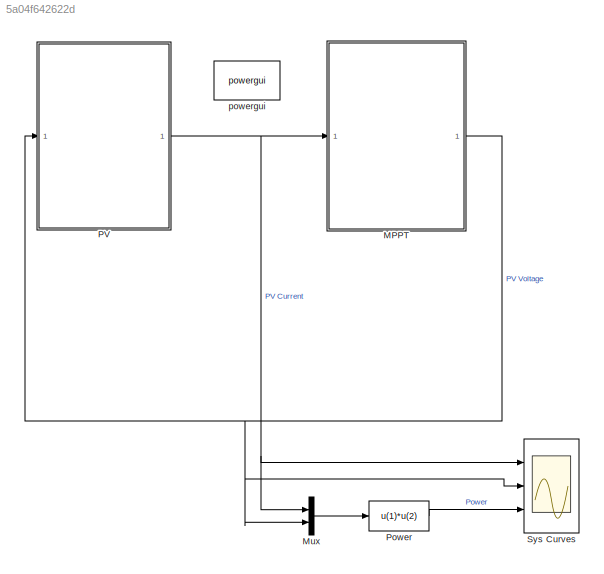
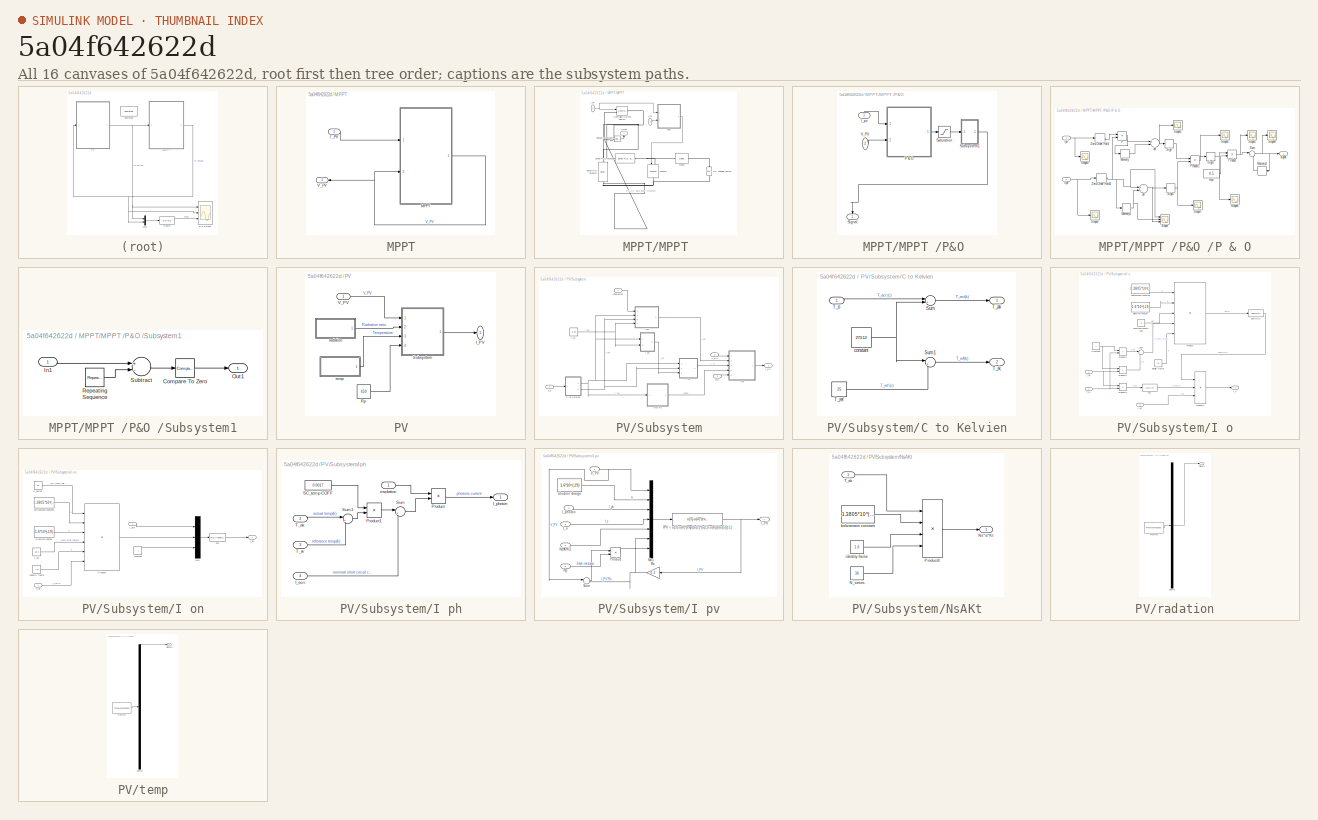
[diagram: thumbnail index - all 16 canvases of the model, root first then tree order]
MODEL slx_5a04f642622d
KIND model
CONFIG AbsTol = auto
CONFIG FixedStep = auto
CONFIG MaxStep = auto
CONFIG MinStep = .00001
CONFIG RelTol = 1e-6
CONFIG SampleTimeConstraint = Unconstrained
CONFIG Solver = ode45
CONFIG SolverMode = Auto
CONFIG SolverName = ode45
CONFIG StartTime = 0.0
CONFIG StopTime = .08
BLOCK [SubSystem] MPPT
  Ports = [1, 1]
  RequestExecContextInheritance = off
BLOCK [Inport] MPPT/I'_PV
  IconDisplay = Port number
BLOCK [SubSystem] MPPT/MPPT 
  Ports = [2, 1]
  RequestExecContextInheritance = off
BLOCK [Reference] MPPT/MPPT /Controlled Current Source  REF=powerlib/Electrical
Sources/Controlled Current Source
  Amplitude = 0
  Frequency = 0
  Initialize = on
  Measurements = None
  Phase = 0
  Ports = [1, 0, 0, 0, 0, 1, 1]
  SourceBlock = powerlib/Electrical\nSources/Controlled Current Source
  SourceType = Controlled Current Source
  Source_Type = AC
BLOCK [Reference] MPPT/MPPT /DC Voltage Source  REF=powerlib/Electrical
Sources/DC Voltage Source
  Amplitude = 55
  Measurements = None
  Ports = [0, 0, 0, 0, 0, 1, 1]
  SourceBlock = powerlib/Electrical\nSources/DC Voltage Source
  SourceType = DC Voltage Source
BLOCK [Reference] MPPT/MPPT /Diode  REF=powerlib/Power
Electronics/Diode
  Cs = 250e-9
  IC = 0
  Lon = 0
  Measurements = off
  Ports = [0, 0, 0, 0, 0, 1, 1]
  Ron = 0.001
  Rs = 500
  SourceBlock = powerlib/Power\nElectronics/Diode
  SourceType = Diode
  UseSnubber = off
  Vf = 0.8
BLOCK [Inport] MPPT/MPPT /I_PV
  IconDisplay = Port number
BLOCK [Reference] MPPT/MPPT /Mosfet  REF=powerlib/Power
Electronics/Mosfet
  Cs = inf
  IC = 0
  Lon = 0
  Measurements = off
  Ports = [1, 0, 0, 0, 0, 1, 1]
  Rd = 0.01
  Ron = 0.1
  Rs = 1e5
  SourceBlock = powerlib/Power\nElectronics/Mosfet
  SourceType = Mosfet
  Vfd = 0
BLOCK [SubSystem] MPPT/MPPT /P&O 
  Ports = [2, 1]
  RequestExecContextInheritance = off
BLOCK [Inport] MPPT/MPPT /P&O /I_pv
  IconDisplay = Port number
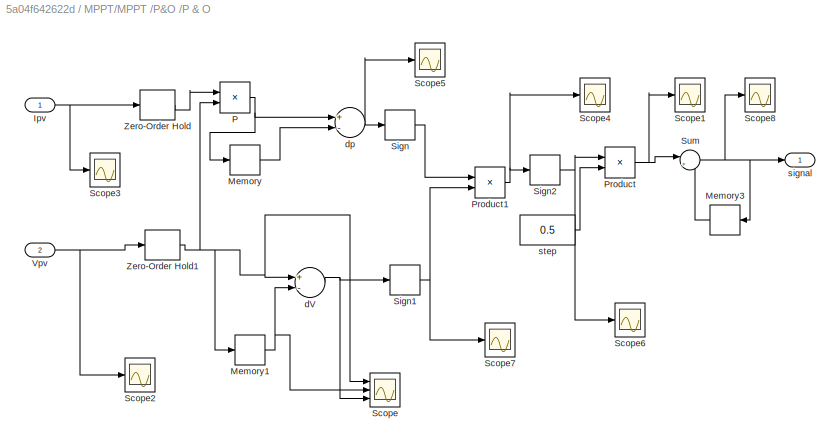
BLOCK [SubSystem] MPPT/MPPT /P&O /P & O
  Ports = [2, 1]
  RequestExecContextInheritance = off
BLOCK [Inport] MPPT/MPPT /P&O /P & O/Ipv
  IconDisplay = Port number
BLOCK [Memory] MPPT/MPPT /P&O /P & O/Memory
  InheritSampleTime = on
BLOCK [Memory] MPPT/MPPT /P&O /P & O/Memory1
  InheritSampleTime = on
BLOCK [Memory] MPPT/MPPT /P&O /P & O/Memory3
  InheritSampleTime = on
BLOCK [Product] MPPT/MPPT /P&O /P & O/P
  InputSameDT = off
  OutDataTypeStr = Inherit: Inherit via internal rule
  Ports = [2, 1]
  SaturateOnIntegerOverflow = off
BLOCK [Product] MPPT/MPPT /P&O /P & O/Product
  InputSameDT = off
  OutDataTypeStr = Inherit: Inherit via internal rule
  Ports = [2, 1]
  SaturateOnIntegerOverflow = off
BLOCK [Product] MPPT/MPPT /P&O /P & O/Product1
  InputSameDT = off
  OutDataTypeStr = Inherit: Inherit via internal rule
  Ports = [2, 1]
  SaturateOnIntegerOverflow = off
BLOCK [Scope] MPPT/MPPT /P&O /P & O/Scope
  DataFormat = StructureWithTime
  Floating = off
  LimitDataPoints = off
  NumInputPorts = 3
  Ports = [3]
  SampleTime = 0
  YMax = 32.2424~32.2424~1.7e-005
  YMin = 29.1717~29.1717~1e-006
  ZoomMode = yonly
BLOCK [Scope] MPPT/MPPT /P&O /P & O/Scope1
  DataFormat = StructureWithTime
  Floating = off
  LimitDataPoints = off
  NumInputPorts = 1
  Ports = [1]
  SampleTime = 0
  SaveName = ScopeData34
  YMax = 0.0005
  YMin = -0.0005
  ZoomMode = yonly
BLOCK [Scope] MPPT/MPPT /P&O /P & O/Scope2
  DataFormat = StructureWithTime
  Floating = off
  LimitDataPoints = off
  NumInputPorts = 1
  Ports = [1]
  SampleTime = 0
  SaveName = ScopeData35
  YMax = 10
  YMin = -11
  ZoomMode = yonly
BLOCK [Scope] MPPT/MPPT /P&O /P & O/Scope3
  DataFormat = StructureWithTime
  Floating = off
  LimitDataPoints = off
  NumInputPorts = 1
  Ports = [1]
  SampleTime = 0
  SaveName = ScopeData36
  YMax = 10
  YMin = -11
  ZoomMode = yonly
BLOCK [Scope] MPPT/MPPT /P&O /P & O/Scope4
  DataFormat = StructureWithTime
  Floating = off
  LimitDataPoints = off
  NumInputPorts = 1
  Ports = [1]
  SampleTime = 0
  SaveName = ScopeData37
  YMax = 10
  YMin = -11
  ZoomMode = yonly
BLOCK [Scope] MPPT/MPPT /P&O /P & O/Scope5
  DataFormat = StructureWithTime
  Floating = off
  LimitDataPoints = off
  NumInputPorts = 1
  Ports = [1]
  SampleTime = 0
  SaveName = ScopeData1
  YMax = 10
  YMin = -11
  ZoomMode = yonly
BLOCK [Scope] MPPT/MPPT /P&O /P & O/Scope6
  DataFormat = StructureWithTime
  Floating = off
  LimitDataPoints = off
  NumInputPorts = 1
  Ports = [1]
  SampleTime = 0
  SaveName = ScopeData38
  YMax = 10
  YMin = -11
  ZoomMode = yonly
BLOCK [Scope] MPPT/MPPT /P&O /P & O/Scope7
  DataFormat = StructureWithTime
  Floating = off
  LimitDataPoints = off
  NumInputPorts = 1
  Ports = [1]
  SampleTime = 0
  SaveName = ScopeData39
  YMax = 10
  YMin = -11
  ZoomMode = xonly
BLOCK [Scope] MPPT/MPPT /P&O /P & O/Scope8
  DataFormat = StructureWithTime
  Floating = off
  LimitDataPoints = off
  NumInputPorts = 1
  Ports = [1]
  SampleTime = 0
  SaveName = ScopeData3
  YMax = 0.0005
  YMin = -0.0005
  ZoomMode = yonly
BLOCK [Signum] MPPT/MPPT /P&O /P & O/Sign
BLOCK [Signum] MPPT/MPPT /P&O /P & O/Sign1
BLOCK [Signum] MPPT/MPPT /P&O /P & O/Sign2
BLOCK [Sum] MPPT/MPPT /P&O /P & O/Sum
  IconShape = round
  InputSameDT = off
  Inputs = |++
  OutDataTypeStr = Inherit: Inherit via internal rule
  Ports = [2, 1]
  SaturateOnIntegerOverflow = off
BLOCK [Inport] MPPT/MPPT /P&O /P & O/Vpv
  IconDisplay = Port number
  Port = 2
BLOCK [ZeroOrderHold] MPPT/MPPT /P&O /P & O/Zero-Order Hold
  SampleTime = 0.002
BLOCK [ZeroOrderHold] MPPT/MPPT /P&O /P & O/Zero-Order Hold1
  SampleTime = 0.002
BLOCK [Sum] MPPT/MPPT /P&O /P & O/dV
  InputSameDT = off
  Inputs = +-
  OutDataTypeStr = Inherit: Inherit via internal rule
  Ports = [2, 1]
  SaturateOnIntegerOverflow = off
BLOCK [Sum] MPPT/MPPT /P&O /P & O/dp
  InputSameDT = off
  Inputs = +-
  OutDataTypeStr = Inherit: Inherit via internal rule
  Ports = [2, 1]
  SaturateOnIntegerOverflow = off
BLOCK [Outport] MPPT/MPPT /P&O /P & O/signal
  IconDisplay = Port number
BLOCK [Constant] MPPT/MPPT /P&O /P & O/step
  Value = 0.5
BLOCK [Saturate] MPPT/MPPT /P&O /Saturation
  InputPortMap = u0
  Ports = [1, 1]
  UpperLimit = 1
BLOCK [Outport] MPPT/MPPT /P&O /Signal
  IconDisplay = Port number
BLOCK [SubSystem] MPPT/MPPT /P&O /Subsystem1
  Ports = [1, 1]
  RequestExecContextInheritance = off
BLOCK [Reference] MPPT/MPPT /P&O /Subsystem1/Compare To Zero  REF=simulink/Logic and Bit
Operations/Compare
To Zero
  OutDataTypeStr = boolean
  Ports = [1, 1]
  SourceBlock = simulink/Logic and Bit\nOperations/Compare\nTo Zero
  SourceType = Compare To Zero
  ZeroCross = on
  relop = <=
BLOCK [Inport] MPPT/MPPT /P&O /Subsystem1/In1
  IconDisplay = Port number
BLOCK [Outport] MPPT/MPPT /P&O /Subsystem1/Out1
  IconDisplay = Port number
BLOCK [Reference] MPPT/MPPT /P&O /Subsystem1/Repeating Sequence  REF=simulink/Sources/Repeating
Sequence
  Ports = [0, 1]
  SourceBlock = simulink/Sources/Repeating\nSequence
  SourceType = Repeating table
  rep_seq_t = [0 0.1e-3]
  rep_seq_y = [0 1]
BLOCK [Sum] MPPT/MPPT /P&O /Subsystem1/Subtract
  InputSameDT = off
  Inputs = +-
  OutDataTypeStr = Inherit: Inherit via internal rule
  Ports = [2, 1]
  SaturateOnIntegerOverflow = off
BLOCK [Inport] MPPT/MPPT /P&O /V_PV
  IconDisplay = Port number
  Port = 2
BLOCK [Reference] MPPT/MPPT /Series RLC Branch  REF=powerlib/Elements/Series RLC Branch
  BranchType = RL
  Capacitance = 1e-6
  Inductance = 1e-3
  InitialCurrent = 0
  InitialVoltage = 0
  LConnTagsString = __new0
  Measurements = None
  Ports = [0, 0, 0, 0, 0, 1, 1]
  RConnTagsString = __new0
  Resistance = .45
  SetiL0 = off
  Setx0 = off
  SourceBlock = powerlib/Elements/Series RLC Branch
  SourceType = Series RLC Branch
BLOCK [Reference] MPPT/MPPT /Series RLC Branch1  REF=powerlib/Elements/Series RLC Branch
  BranchType = C
  Capacitance = 2e-3
  Inductance = 1e-3
  InitialCurrent = 0
  InitialVoltage = 0
  LConnTagsString = __new0
  Measurements = None
  Ports = [0, 0, 0, 0, 0, 1, 1]
  RConnTagsString = __new0
  Resistance = 1
  SetiL0 = off
  Setx0 = off
  SourceBlock = powerlib/Elements/Series RLC Branch
  SourceType = Series RLC Branch
BLOCK [Inport] MPPT/MPPT /V_PV
  IconDisplay = Port number
  Port = 2
BLOCK [Outport] MPPT/MPPT /V_mpp
  IconDisplay = Port number
BLOCK [Reference] MPPT/MPPT /Voltage Measurement  REF=powerlib/Measurements/Voltage Measurement
  OutputType = Complex
  PSBequivalent = 0
  PhasorSimulation = off
  Ports = [0, 1, 0, 0, 0, 2]
  SourceBlock = powerlib/Measurements/Voltage Measurement
  SourceType = Voltage Measurement
  UserDataPersistent = on
BLOCK [Outport] MPPT/V'_PV 
  IconDisplay = Port number
BLOCK [Mux] Mux
  DisplayOption = bar
  Inputs = 2
  Ports = [2, 1]
BLOCK [SubSystem] PV
  Ports = [1, 1]
  RequestExecContextInheritance = off
BLOCK [Outport] PV/I_PV
  IconDisplay = Port number
BLOCK [Constant] PV/Rp
  Value = 450
BLOCK [SubSystem] PV/Subsystem
  Ports = [4, 1]
  RequestExecContextInheritance = off
BLOCK [SubSystem] PV/Subsystem/C to Kelvien
  Ports = [1, 2]
  RequestExecContextInheritance = off
BLOCK [Sum] PV/Subsystem/C to Kelvien/Sum
  IconShape = round
  InputSameDT = off
  Inputs = |++
  OutDataTypeStr = Inherit: Inherit via internal rule
  Ports = [2, 1]
  SaturateOnIntegerOverflow = off
BLOCK [Sum] PV/Subsystem/C to Kelvien/Sum1
  IconShape = round
  InputSameDT = off
  Inputs = |++
  OutDataTypeStr = Inherit: Inherit via internal rule
  Ports = [2, 1]
  SaturateOnIntegerOverflow = off
BLOCK [Outport] PV/Subsystem/C to Kelvien/T_ak
  IconDisplay = Port number
BLOCK [Inport] PV/Subsystem/C to Kelvien/T_o
  IconDisplay = Port number
BLOCK [Constant] PV/Subsystem/C to Kelvien/T_ref
  Value = 25
BLOCK [Outport] PV/Subsystem/C to Kelvien/T_rk
  IconDisplay = Port number
  Port = 2
BLOCK [Constant] PV/Subsystem/C to Kelvien/constant
  Value = 273.12
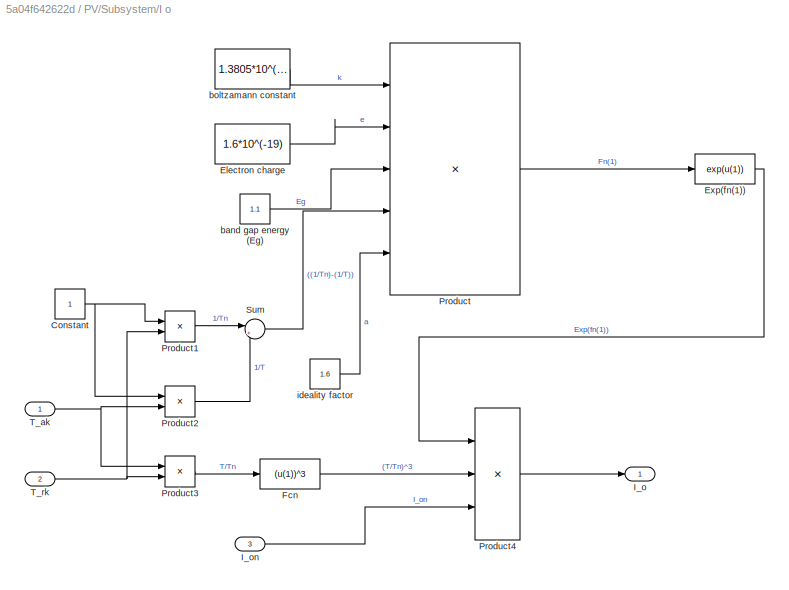
BLOCK [SubSystem] PV/Subsystem/I o
  Ports = [3, 1]
  RequestExecContextInheritance = off
BLOCK [Constant] PV/Subsystem/I o/Constant
BLOCK [Constant] PV/Subsystem/I o/Electron charge
  Value = 1.6*10^(-19)
BLOCK [Fcn] PV/Subsystem/I o/Exp(fn(1))
  Expr = exp(u(1))
BLOCK [Fcn] PV/Subsystem/I o/Fcn
  Expr = (u(1))^3
BLOCK [Outport] PV/Subsystem/I o/I_o
  IconDisplay = Port number
BLOCK [Inport] PV/Subsystem/I o/I_on
  IconDisplay = Port number
  Port = 3
BLOCK [Product] PV/Subsystem/I o/Product
  InputSameDT = off
  Inputs = /***/
  OutDataTypeStr = Inherit: Inherit via internal rule
  Ports = [5, 1]
  RndMeth = Floor
  SaturateOnIntegerOverflow = off
BLOCK [Product] PV/Subsystem/I o/Product1
  InputSameDT = off
  Inputs = */
  OutDataTypeStr = Inherit: Inherit via internal rule
  Ports = [2, 1]
  RndMeth = Floor
  SaturateOnIntegerOverflow = off
BLOCK [Product] PV/Subsystem/I o/Product2
  InputSameDT = off
  Inputs = */
  OutDataTypeStr = Inherit: Inherit via internal rule
  Ports = [2, 1]
  RndMeth = Floor
  SaturateOnIntegerOverflow = off
BLOCK [Product] PV/Subsystem/I o/Product3
  InputSameDT = off
  Inputs = */
  OutDataTypeStr = Inherit: Inherit via internal rule
  Ports = [2, 1]
  RndMeth = Floor
  SaturateOnIntegerOverflow = off
BLOCK [Product] PV/Subsystem/I o/Product4
  InputSameDT = off
  Inputs = 3
  OutDataTypeStr = Inherit: Inherit via internal rule
  Ports = [3, 1]
  RndMeth = Floor
  SaturateOnIntegerOverflow = off
BLOCK [Sum] PV/Subsystem/I o/Sum
  IconShape = round
  InputSameDT = off
  Inputs = |+-
  OutDataTypeStr = Inherit: Inherit via internal rule
  Ports = [2, 1]
  SaturateOnIntegerOverflow = off
BLOCK [Inport] PV/Subsystem/I o/T_ak
  IconDisplay = Port number
BLOCK [Inport] PV/Subsystem/I o/T_rk
  IconDisplay = Port number
  Port = 2
BLOCK [Constant] PV/Subsystem/I o/band gap energy (Eg)
  Value = 1.1
BLOCK [Constant] PV/Subsystem/I o/boltzamann constant
  Value = 1.3805*10^(-23)
BLOCK [Constant] PV/Subsystem/I o/ideality factor
  Value = 1.6
BLOCK [SubSystem] PV/Subsystem/I on
  Ports = [2, 1]
  RequestExecContextInheritance = off
BLOCK [Constant] PV/Subsystem/I on/Electron charge
  Value = 1.6*10^(-19)
BLOCK [Fcn] PV/Subsystem/I on/Fcn
  Expr = (u(1))/(exp(u(2))-u(1))
BLOCK [Outport] PV/Subsystem/I on/I_on
  IconDisplay = Port number
BLOCK [Inport] PV/Subsystem/I on/I_scn
  IconDisplay = Port number
  Port = 2
BLOCK [Mux] PV/Subsystem/I on/Mux
  DisplayOption = bar
  Inputs = 3
  Ports = [3, 1]
BLOCK [Constant] PV/Subsystem/I on/N_series
  Value = 36
BLOCK [Product] PV/Subsystem/I on/Product
  InputSameDT = off
  Inputs = //**//
  OutDataTypeStr = Inherit: Inherit via internal rule
  Ports = [6, 1]
  RndMeth = Floor
  SaturateOnIntegerOverflow = off
BLOCK [Inport] PV/Subsystem/I on/T_ref
  IconDisplay = Port number
BLOCK [Constant] PV/Subsystem/I on/V_oc
  Value = 68.2
BLOCK [Constant] PV/Subsystem/I on/boltzamann constant
  Value = 1.3805*10^(-23)
BLOCK [Constant] PV/Subsystem/I on/constant
BLOCK [Constant] PV/Subsystem/I on/ideality factor
  Value = 1.6
BLOCK [SubSystem] PV/Subsystem/I ph
  Ports = [4, 1]
  RequestExecContextInheritance = off
BLOCK [Outport] PV/Subsystem/I ph/I_photon
  IconDisplay = Port number
BLOCK [Inport] PV/Subsystem/I ph/I_scn
  IconDisplay = Port number
  Port = 4
BLOCK [Product] PV/Subsystem/I ph/Product
  InputSameDT = off
  OutDataTypeStr = Inherit: Inherit via internal rule
  Ports = [2, 1]
  RndMeth = Floor
  SaturateOnIntegerOverflow = off
BLOCK [Product] PV/Subsystem/I ph/Product1
  InputSameDT = off
  OutDataTypeStr = Inherit: Inherit via internal rule
  Ports = [2, 1]
  RndMeth = Floor
  SaturateOnIntegerOverflow = off
BLOCK [Constant] PV/Subsystem/I ph/SC_temp COFF
  Value = 0.0017
BLOCK [Sum] PV/Subsystem/I ph/Sum
  IconShape = round
  InputSameDT = off
  Inputs = |++
  OutDataTypeStr = Inherit: Inherit via internal rule
  Ports = [2, 1]
  SaturateOnIntegerOverflow = off
BLOCK [Sum] PV/Subsystem/I ph/Sum1
  IconShape = round
  InputSameDT = off
  Inputs = |+-
  OutDataTypeStr = Inherit: Inherit via internal rule
  Ports = [2, 1]
  SaturateOnIntegerOverflow = off
BLOCK [Inport] PV/Subsystem/I ph/T_ak
  IconDisplay = Port number
  Port = 2
BLOCK [Inport] PV/Subsystem/I ph/T_rk
  IconDisplay = Port number
  Port = 3
BLOCK [Inport] PV/Subsystem/I ph/insolation
  IconDisplay = Port number
BLOCK [SubSystem] PV/Subsystem/I pv
  Ports = [5, 1]
  RequestExecContextInheritance = off
BLOCK [Constant] PV/Subsystem/I pv/Electron charge
  Value = 1.6*10^(-19)
BLOCK [Fcn] PV/Subsystem/I pv/IPV = u(3)-u(4)*(exp((u(2)*(u(1)+u(6)))//(u(5)))-1)
  Expr = u(3)-u(4)*(exp((u(2)*(u(1)+u(6)))/(u(5)))-1)-u(7)
BLOCK [Outport] PV/Subsystem/I pv/I_PV
  IconDisplay = Port number
BLOCK [Inport] PV/Subsystem/I pv/I_o
  IconDisplay = Port number
  Port = 3
BLOCK [Inport] PV/Subsystem/I pv/I_photon
  IconDisplay = Port number
  Port = 2
BLOCK [Mux] PV/Subsystem/I pv/Mux
  DisplayOption = bar
  Inputs = 7
  Ports = [7, 1]
BLOCK [Inport] PV/Subsystem/I pv/Ns*A*Kt1
  IconDisplay = Port number
  Port = 4
BLOCK [Product] PV/Subsystem/I pv/Product
  InputSameDT = off
  Inputs = */
  OutDataTypeStr = Inherit: Inherit via internal rule
  Ports = [2, 1]
  RndMeth = Floor
  SaturateOnIntegerOverflow = off
BLOCK [Inport] PV/Subsystem/I pv/Rp
  IconDisplay = Port number
  Port = 5
BLOCK [Gain] PV/Subsystem/I pv/Rs
  Gain = 0.1
  OutDataTypeStr = Inherit: Inherit via internal rule
  ParamDataTypeStr = Inherit: Inherit via internal rule
  SaturateOnIntegerOverflow = off
BLOCK [Sum] PV/Subsystem/I pv/Sum
  IconShape = round
  InputSameDT = off
  Inputs = |++
  OutDataTypeStr = Inherit: Inherit via internal rule
  Ports = [2, 1]
  SaturateOnIntegerOverflow = off
BLOCK [Inport] PV/Subsystem/I pv/V_PV
  IconDisplay = Port number
BLOCK [Outport] PV/Subsystem/I_PV
  IconDisplay = Port number
BLOCK [Constant] PV/Subsystem/I_sc
  Value = 6.39
BLOCK [SubSystem] PV/Subsystem/NsAKt
  Ports = [1, 1]
  RequestExecContextInheritance = off
BLOCK [Constant] PV/Subsystem/NsAKt/N_series
  Value = 36
BLOCK [Outport] PV/Subsystem/NsAKt/Ns*a*Kt
  IconDisplay = Port number
BLOCK [Product] PV/Subsystem/NsAKt/Product4
  InputSameDT = off
  Inputs = 4
  OutDataTypeStr = Inherit: Inherit via internal rule
  Ports = [4, 1]
  RndMeth = Floor
  SaturateOnIntegerOverflow = off
BLOCK [Inport] PV/Subsystem/NsAKt/T_ak
  IconDisplay = Port number
BLOCK [Constant] PV/Subsystem/NsAKt/boltzamann constant
  Value = 1.3805*10^(-23)
BLOCK [Constant] PV/Subsystem/NsAKt/ideality factor
  Value = 1.6
BLOCK [Inport] PV/Subsystem/Rp
  IconDisplay = Port number
  Port = 4
BLOCK [Inport] PV/Subsystem/T_o
  IconDisplay = Port number
  Port = 3
BLOCK [Inport] PV/Subsystem/V_PV
  IconDisplay = Port number
BLOCK [Inport] PV/Subsystem/insolation
  IconDisplay = Port number
  Port = 2
BLOCK [Inport] PV/V_PV
  IconDisplay = Port number
BLOCK [SubSystem] PV/radation
  ClipboardFcn = sigbuilder_block('clipboard');
  CloseFcn = sigbuilder_block('close');
  ContinueFcn = sigbuilder_block('continue');
  CopyFcn = sigbuilder_block('copy');
  DeleteFcn = sigbuilder_block('delete');
  LoadFcn = sigbuilder_block('load');
  MaskHideContents = on
  ModelCloseFcn = sigbuilder_block('modelClose');
  NameChangeFcn = sigbuilder_block('namechange');
  OpenFcn = sigbuilder_block('open',[267 58.5 550.5 394.5 ]);
  PauseFcn = sigbuilder_block('pause');
  Ports = [0, 1]
  PreSaveFcn = sigbuilder_block('preSave');
  RequestExecContextInheritance = off
  StartFcn = sigbuilder_block('start');
  StopFcn = sigbuilder_block('stop');
  Tag = STV Subsys
BLOCK [Demux] PV/radation/Demux
  Outputs = 1
  Ports = [1, 1]
  Tag = STV Demux
BLOCK [FromWorkspace] PV/radation/FromWs
  SampleTime = 0
  Tag = STV FromWs
  VariableName = tuvar
  ZeroCross = on
BLOCK [Outport] PV/radation/Signal 1
  IconDisplay = Port number
  Tag = STV Outport
BLOCK [SubSystem] PV/temp
  ClipboardFcn = sigbuilder_block('clipboard');
  CloseFcn = sigbuilder_block('close');
  ContinueFcn = sigbuilder_block('continue');
  CopyFcn = sigbuilder_block('copy');
  DeleteFcn = sigbuilder_block('delete');
  LoadFcn = sigbuilder_block('load');
  MaskHideContents = on
  ModelCloseFcn = sigbuilder_block('modelClose');
  NameChangeFcn = sigbuilder_block('namechange');
  OpenFcn = sigbuilder_block('open',[437.25 118.5 550.5 394.5 ]);
  PauseFcn = sigbuilder_block('pause');
  Ports = [0, 1]
  PreSaveFcn = sigbuilder_block('preSave');
  RequestExecContextInheritance = off
  StartFcn = sigbuilder_block('start');
  StopFcn = sigbuilder_block('stop');
  Tag = STV Subsys
BLOCK [Demux] PV/temp/Demux
  Outputs = 1
  Ports = [1, 1]
  Tag = STV Demux
BLOCK [FromWorkspace] PV/temp/FromWs
  SampleTime = 0
  Tag = STV FromWs
  VariableName = tuvar
  ZeroCross = on
BLOCK [Outport] PV/temp/Signal 2
  IconDisplay = Port number
  Tag = STV Outport
BLOCK [Fcn] Power 
  Expr = u(1)*u(2)
BLOCK [Scope] Sys Curves
  Floating = off
  LimitDataPoints = off
  NumInputPorts = 3
  Ports = [3]
  SaveName = ScopeData2
  YMax = 400~80~6.4
  YMin = 0~0~6.15
  ZoomMode = xonly
BLOCK [Reference] powergui  REF=powerlib/powergui
  DisableRonSwitches = off
  DisableSnubberDevices = off
  DisableVfSwitches = off
  DisplayEquations = off
  DisplayStyle = 1
  EnableUseOfTLC = off
  ErrMax = 1e-4
  Frange = [0:2:500]
  FreqAxis = off
  FunctionMessages = off
  HookPort = off
  Interpol = off
  Iterations = 50
  MaxFrequency = 1000
  Pbase = 100e6
  Ports = []
  Priority = 1
  ResistiveCurrentMeasurement = off
  RestoreLinks = warning
  RmsSteady = 1
  SPID = on
  SampleTime = 50e-6
  ShowGrid = off
  SolverType = Tustin
  SourceBlock = powerlib/powergui
  SourceType = PSB option menu block
  StartTime = 0.0
  SwTol = 0
  Ts = 100
  UnitsV = kV
  UnitsW = MW
  UserDataPersistent = on
  Xlog = on
  Ylog = off
  ZoomFFT = off
  buscounter = 0
  cycles = 1
  display = off
  echomessages = off
  frequency = 60
  frequencyindice = 0
  frequencyindicesteady = 1
  fundamental = 60
  methode = off
  save = off
  structure = 0
  variable = ZData
  x0status = blocks
ANNOTATION MPPT/MPPT : DC_DC Buck Boost Conveter
LINE MPPT/I'_PV:1 -> MPPT/MPPT :1
NET MPPT/MPPT /I_PV:1 -> MPPT/MPPT /Controlled Current Source:1, MPPT/MPPT /P&O :1
LINE MPPT/MPPT /P&O /I_pv:1 -> MPPT/MPPT /P&O /P & O:1
NET MPPT/MPPT /P&O /P & O/Ipv:1 -> MPPT/MPPT /P&O /P & O/Scope3:1, MPPT/MPPT /P&O /P & O/Zero-Order Hold:1
NET MPPT/MPPT /P&O /P & O/Memory1:1 -> MPPT/MPPT /P&O /P & O/Scope:2, MPPT/MPPT /P&O /P & O/dV:2
LINE MPPT/MPPT /P&O /P & O/Memory3:1 -> MPPT/MPPT /P&O /P & O/Sum:2
LINE MPPT/MPPT /P&O /P & O/Memory:1 -> MPPT/MPPT /P&O /P & O/dp:2
NET MPPT/MPPT /P&O /P & O/P:1 -> MPPT/MPPT /P&O /P & O/Memory:1, MPPT/MPPT /P&O /P & O/dp:1
NET MPPT/MPPT /P&O /P & O/Product1:1 -> MPPT/MPPT /P&O /P & O/Scope4:1, MPPT/MPPT /P&O /P & O/Sign2:1
NET MPPT/MPPT /P&O /P & O/Product:1 -> MPPT/MPPT /P&O /P & O/Scope1:1, MPPT/MPPT /P&O /P & O/Sum:1
NET MPPT/MPPT /P&O /P & O/Sign1:1 -> MPPT/MPPT /P&O /P & O/Product1:2, MPPT/MPPT /P&O /P & O/Scope7:1
NET MPPT/MPPT /P&O /P & O/Sign2:1 -> MPPT/MPPT /P&O /P & O/Product:1, MPPT/MPPT /P&O /P & O/Scope6:1
LINE MPPT/MPPT /P&O /P & O/Sign:1 -> MPPT/MPPT /P&O /P & O/Product1:1
NET MPPT/MPPT /P&O /P & O/Sum:1 -> MPPT/MPPT /P&O /P & O/Memory3:1, MPPT/MPPT /P&O /P & O/Scope8:1, MPPT/MPPT /P&O /P & O/signal:1
NET MPPT/MPPT /P&O /P & O/Vpv:1 -> MPPT/MPPT /P&O /P & O/Scope2:1, MPPT/MPPT /P&O /P & O/Zero-Order Hold1:1
NET MPPT/MPPT /P&O /P & O/Zero-Order Hold1:1 -> MPPT/MPPT /P&O /P & O/Memory1:1, MPPT/MPPT /P&O /P & O/P:2, MPPT/MPPT /P&O /P & O/Scope:1, MPPT/MPPT /P&O /P & O/dV:1
LINE MPPT/MPPT /P&O /P & O/Zero-Order Hold:1 -> MPPT/MPPT /P&O /P & O/P:1
NET MPPT/MPPT /P&O /P & O/dV:1 -> MPPT/MPPT /P&O /P & O/Scope:3, MPPT/MPPT /P&O /P & O/Sign1:1
NET MPPT/MPPT /P&O /P & O/dp:1 -> MPPT/MPPT /P&O /P & O/Scope5:1, MPPT/MPPT /P&O /P & O/Sign:1
LINE MPPT/MPPT /P&O /P & O/step:1 -> MPPT/MPPT /P&O /P & O/Product:2
LINE MPPT/MPPT /P&O /P & O:1 -> MPPT/MPPT /P&O /Saturation:1
LINE MPPT/MPPT /P&O /Saturation:1 -> MPPT/MPPT /P&O /Subsystem1:1
LINE MPPT/MPPT /P&O /Subsystem1/Compare To Zero:1 -> MPPT/MPPT /P&O /Subsystem1/Out1:1
LINE MPPT/MPPT /P&O /Subsystem1/In1:1 -> MPPT/MPPT /P&O /Subsystem1/Subtract:1
LINE MPPT/MPPT /P&O /Subsystem1/Repeating Sequence:1 -> MPPT/MPPT /P&O /Subsystem1/Subtract:2
LINE MPPT/MPPT /P&O /Subsystem1/Subtract:1 -> MPPT/MPPT /P&O /Subsystem1/Compare To Zero:1
LINE MPPT/MPPT /P&O /Subsystem1:1 -> MPPT/MPPT /P&O /Signal:1
LINE MPPT/MPPT /P&O /V_PV:1 -> MPPT/MPPT /P&O /P & O:2
LINE MPPT/MPPT /P&O :1 -> MPPT/MPPT /Mosfet:1
LINE MPPT/MPPT /V_PV:1 -> MPPT/MPPT /P&O :2
LINE MPPT/MPPT /Voltage Measurement:1 -> MPPT/MPPT /V_mpp:1
NET MPPT/MPPT :1 -> MPPT/MPPT :2, MPPT/V'_PV :1
NET MPPT:1 -> Mux:2, PV:1, Sys Curves:2
LINE Mux:1 -> Power :1
LINE PV/Rp:1 -> PV/Subsystem:4
LINE PV/Subsystem/C to Kelvien/Sum1:1 -> PV/Subsystem/C to Kelvien/T_rk:1
LINE PV/Subsystem/C to Kelvien/Sum:1 -> PV/Subsystem/C to Kelvien/T_ak:1
LINE PV/Subsystem/C to Kelvien/T_o:1 -> PV/Subsystem/C to Kelvien/Sum:1
LINE PV/Subsystem/C to Kelvien/T_ref:1 -> PV/Subsystem/C to Kelvien/Sum1:2
NET PV/Subsystem/C to Kelvien/constant:1 -> PV/Subsystem/C to Kelvien/Sum1:1, PV/Subsystem/C to Kelvien/Sum:2
NET PV/Subsystem/C to Kelvien:1 -> PV/Subsystem/I o:1, PV/Subsystem/I on:1, PV/Subsystem/I ph:2, PV/Subsystem/NsAKt:1
NET PV/Subsystem/C to Kelvien:2 -> PV/Subsystem/I o:2, PV/Subsystem/I ph:3
NET PV/Subsystem/I o/Constant:1 -> PV/Subsystem/I o/Product1:1, PV/Subsystem/I o/Product2:1
LINE PV/Subsystem/I o/Electron charge:1 -> PV/Subsystem/I o/Product:2
LINE PV/Subsystem/I o/Exp(fn(1)):1 -> PV/Subsystem/I o/Product4:1
LINE PV/Subsystem/I o/Fcn:1 -> PV/Subsystem/I o/Product4:2
LINE PV/Subsystem/I o/I_on:1 -> PV/Subsystem/I o/Product4:3
LINE PV/Subsystem/I o/Product1:1 -> PV/Subsystem/I o/Sum:1
LINE PV/Subsystem/I o/Product2:1 -> PV/Subsystem/I o/Sum:2
LINE PV/Subsystem/I o/Product3:1 -> PV/Subsystem/I o/Fcn:1
LINE PV/Subsystem/I o/Product4:1 -> PV/Subsystem/I o/I_o:1
LINE PV/Subsystem/I o/Product:1 -> PV/Subsystem/I o/Exp(fn(1)):1
LINE PV/Subsystem/I o/Sum:1 -> PV/Subsystem/I o/Product:4
NET PV/Subsystem/I o/T_ak:1 -> PV/Subsystem/I o/Product2:2, PV/Subsystem/I o/Product3:1
NET PV/Subsystem/I o/T_rk:1 -> PV/Subsystem/I o/Product1:2, PV/Subsystem/I o/Product3:2
LINE PV/Subsystem/I o/band gap energy (Eg):1 -> PV/Subsystem/I o/Product:3
LINE PV/Subsystem/I o/boltzamann constant:1 -> PV/Subsystem/I o/Product:1
LINE PV/Subsystem/I o/ideality factor:1 -> PV/Subsystem/I o/Product:5
LINE PV/Subsystem/I o:1 -> PV/Subsystem/I pv:3
LINE PV/Subsystem/I on/Electron charge:1 -> PV/Subsystem/I on/Product:3
LINE PV/Subsystem/I on/Fcn:1 -> PV/Subsystem/I on/I_on:1
LINE PV/Subsystem/I on/I_scn:1 -> PV/Subsystem/I on/Mux:1
LINE PV/Subsystem/I on/Mux:1 -> PV/Subsystem/I on/Fcn:1
LINE PV/Subsystem/I on/N_series:1 -> PV/Subsystem/I on/Product:1
LINE PV/Subsystem/I on/Product:1 -> PV/Subsystem/I on/Mux:2
LINE PV/Subsystem/I on/T_ref:1 -> PV/Subsystem/I on/Product:6
LINE PV/Subsystem/I on/V_oc:1 -> PV/Subsystem/I on/Product:4
LINE PV/Subsystem/I on/boltzamann constant:1 -> PV/Subsystem/I on/Product:2
LINE PV/Subsystem/I on/constant:1 -> PV/Subsystem/I on/Mux:3
LINE PV/Subsystem/I on/ideality factor:1 -> PV/Subsystem/I on/Product:5
LINE PV/Subsystem/I on:1 -> PV/Subsystem/I o:3
LINE PV/Subsystem/I ph/I_scn:1 -> PV/Subsystem/I ph/Sum:2
LINE PV/Subsystem/I ph/Product1:1 -> PV/Subsystem/I ph/Sum:1
LINE PV/Subsystem/I ph/Product:1 -> PV/Subsystem/I ph/I_photon:1
LINE PV/Subsystem/I ph/SC_temp COFF:1 -> PV/Subsystem/I ph/Product1:1
LINE PV/Subsystem/I ph/Sum1:1 -> PV/Subsystem/I ph/Product1:2
LINE PV/Subsystem/I ph/Sum:1 -> PV/Subsystem/I ph/Product:2
LINE PV/Subsystem/I ph/T_ak:1 -> PV/Subsystem/I ph/Sum1:1
LINE PV/Subsystem/I ph/T_rk:1 -> PV/Subsystem/I ph/Sum1:2
LINE PV/Subsystem/I ph/insolation:1 -> PV/Subsystem/I ph/Product:1
LINE PV/Subsystem/I ph:1 -> PV/Subsystem/I pv:2
LINE PV/Subsystem/I pv/Electron charge:1 -> PV/Subsystem/I pv/Mux:2
NET PV/Subsystem/I pv/IPV = u(3)-u(4)*(exp((u(2)*(u(1)+u(6)))//(u(5)))-1):1 -> PV/Subsystem/I pv/I_PV:1, PV/Subsystem/I pv/Rs:1
LINE PV/Subsystem/I pv/I_o:1 -> PV/Subsystem/I pv/Mux:4
LINE PV/Subsystem/I pv/I_photon:1 -> PV/Subsystem/I pv/Mux:3
LINE PV/Subsystem/I pv/Mux:1 -> PV/Subsystem/I pv/IPV = u(3)-u(4)*(exp((u(2)*(u(1)+u(6)))//(u(5)))-1):1
LINE PV/Subsystem/I pv/Ns*A*Kt1:1 -> PV/Subsystem/I pv/Mux:5
LINE PV/Subsystem/I pv/Product:1 -> PV/Subsystem/I pv/Mux:7
LINE PV/Subsystem/I pv/Rp:1 -> PV/Subsystem/I pv/Product:2
NET PV/Subsystem/I pv/Rs:1 -> PV/Subsystem/I pv/Mux:6, PV/Subsystem/I pv/Sum:2
LINE PV/Subsystem/I pv/Sum:1 -> PV/Subsystem/I pv/Product:1
NET PV/Subsystem/I pv/V_PV:1 -> PV/Subsystem/I pv/Mux:1, PV/Subsystem/I pv/Sum:1
LINE PV/Subsystem/I pv:1 -> PV/Subsystem/I_PV:1
NET PV/Subsystem/I_sc:1 -> PV/Subsystem/I on:2, PV/Subsystem/I ph:4
LINE PV/Subsystem/NsAKt/N_series:1 -> PV/Subsystem/NsAKt/Product4:4
LINE PV/Subsystem/NsAKt/Product4:1 -> PV/Subsystem/NsAKt/Ns*a*Kt:1
LINE PV/Subsystem/NsAKt/T_ak:1 -> PV/Subsystem/NsAKt/Product4:1
LINE PV/Subsystem/NsAKt/boltzamann constant:1 -> PV/Subsystem/NsAKt/Product4:2
LINE PV/Subsystem/NsAKt/ideality factor:1 -> PV/Subsystem/NsAKt/Product4:3
LINE PV/Subsystem/NsAKt:1 -> PV/Subsystem/I pv:4
LINE PV/Subsystem/Rp:1 -> PV/Subsystem/I pv:5
LINE PV/Subsystem/T_o:1 -> PV/Subsystem/C to Kelvien:1
LINE PV/Subsystem/V_PV:1 -> PV/Subsystem/I pv:1
LINE PV/Subsystem/insolation:1 -> PV/Subsystem/I ph:1
LINE PV/Subsystem:1 -> PV/I_PV:1
LINE PV/V_PV:1 -> PV/Subsystem:1
LINE PV/radation:1 -> PV/Subsystem:2
LINE PV/temp:1 -> PV/Subsystem:3
NET PV:1 -> MPPT:1, Mux:1, Sys Curves:1
LINE Power :1 -> Sys Curves:3
PNET net1: MPPT/MPPT /Controlled Current Source:LConn1 -- MPPT/MPPT /DC Voltage Source:LConn1 -- MPPT/MPPT /Mosfet:RConn1 -- MPPT/MPPT /Series RLC Branch1:RConn1 -- MPPT/MPPT /Voltage Measurement:LConn2
PNET net2: MPPT/MPPT /Controlled Current Source:RConn1 -- MPPT/MPPT /Series RLC Branch1:LConn1 -- MPPT/MPPT /Series RLC Branch:LConn1 -- MPPT/MPPT /Voltage Measurement:LConn1
PLINE MPPT/MPPT /DC Voltage Source:RConn1 -- MPPT/MPPT /Diode:RConn1
PNET net3: MPPT/MPPT /Diode:LConn1 -- MPPT/MPPT /Mosfet:LConn1 -- MPPT/MPPT /Series RLC Branch:RConn1
note: NET lines group one-source signal fan-out (src -> all destinations, sorted); 1:1 wires keep LINE; PNET lines group multi-terminal physical nets as a canonical sorted terminal list (undirected conserving connections); 2-terminal nets keep the pairwise PLINE form
